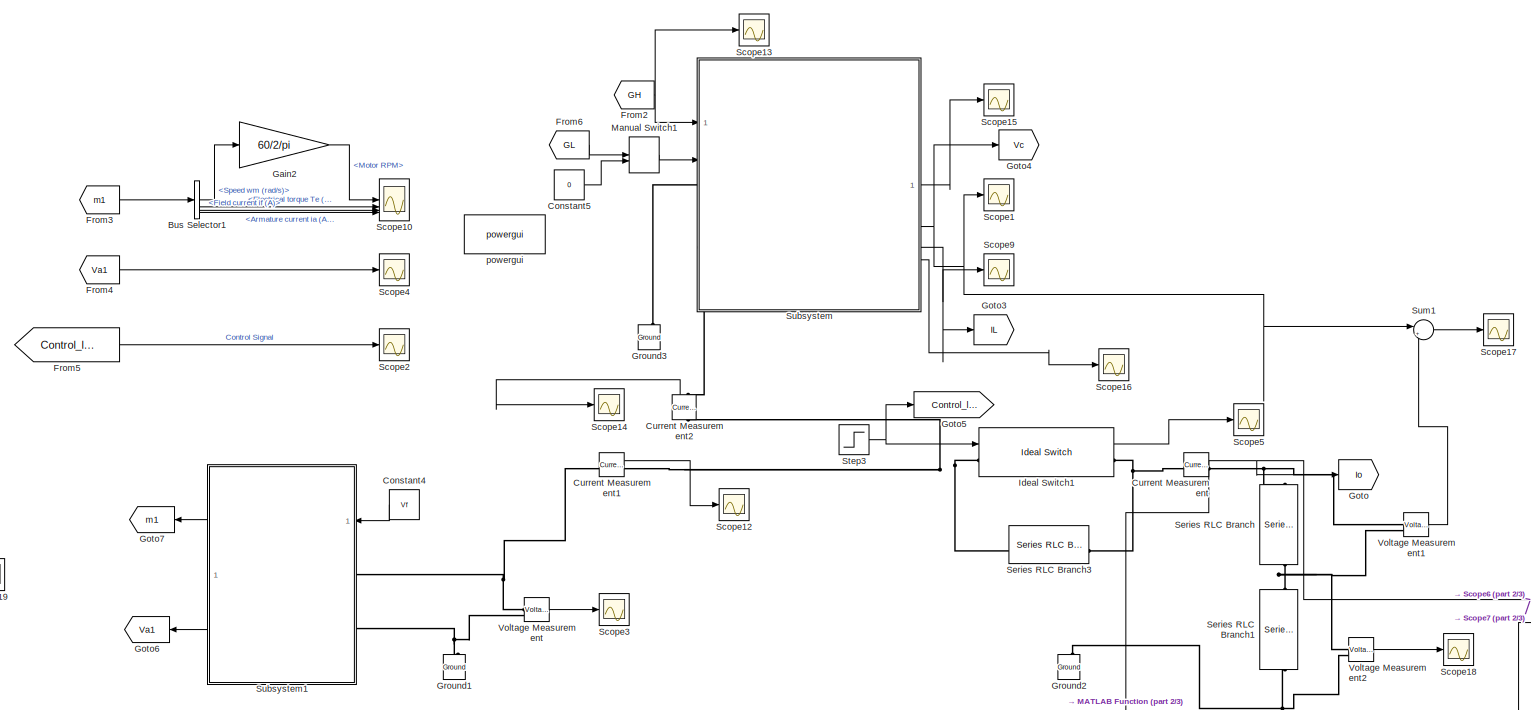
[diagram: root canvas - part 1/3, full width, top band]
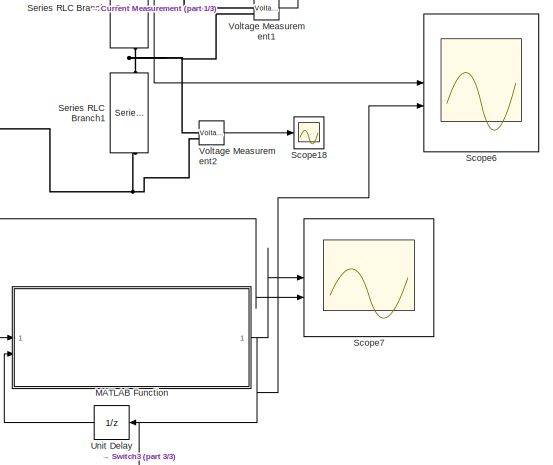
[diagram: root canvas - part 2/3, middle right region]
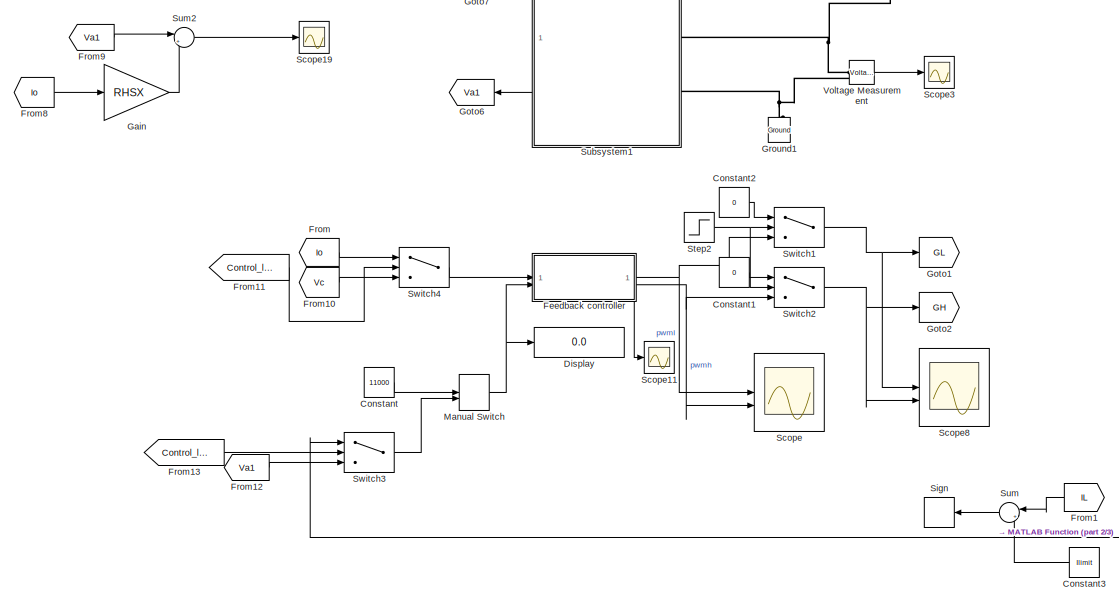
[diagram: root canvas - part 3/3, bottom left region]
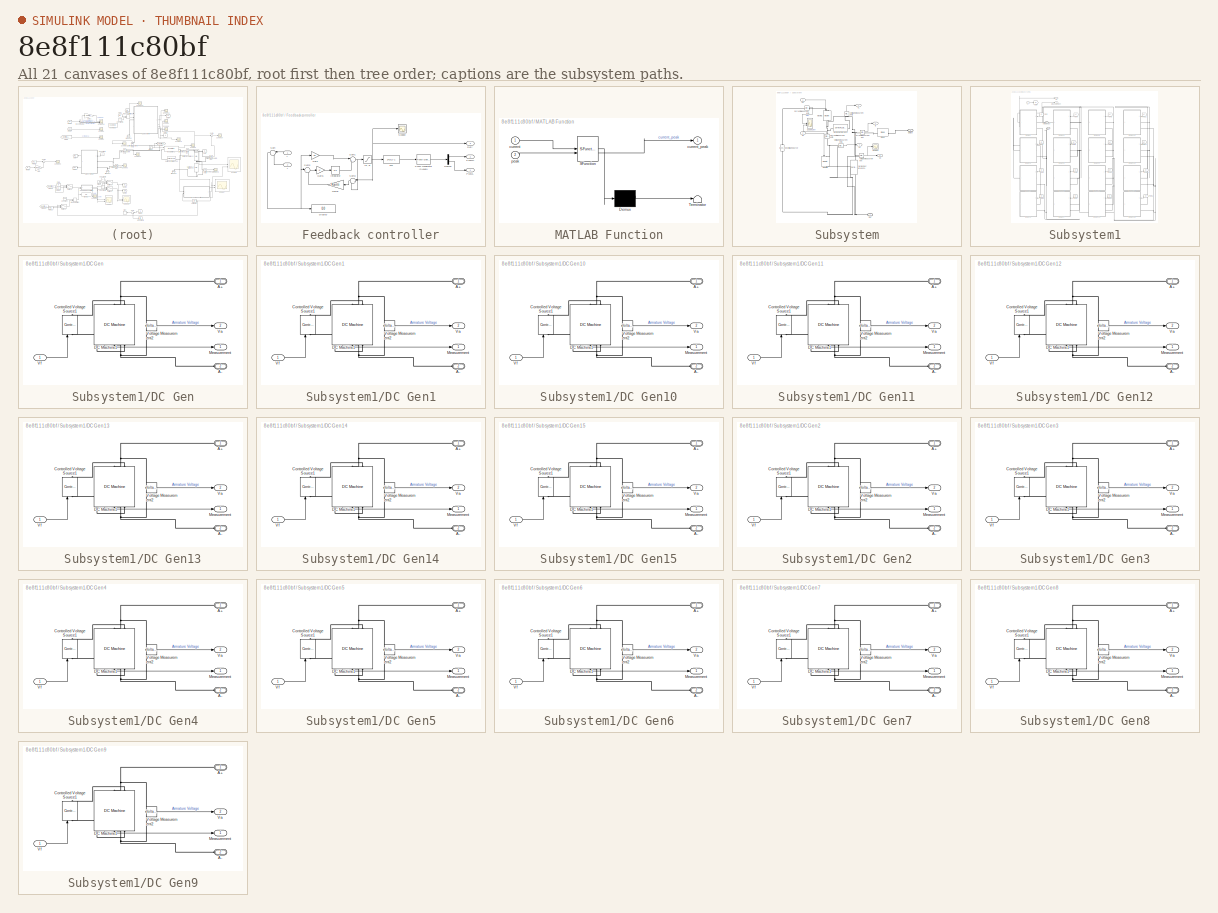
[diagram: thumbnail index - all 21 canvases of the model, root first then tree order]
MODEL slx_8e8f111c80bf
KIND model
CONFIG AbsTol = auto
CONFIG EnableMultiTasking = off
CONFIG FixedStep = auto
CONFIG MaxStep = auto
CONFIG MinStep = auto
CONFIG RelTol = 1e-3
CONFIG SampleTimeConstraint = Unconstrained
CONFIG SolverName = VariableStepAuto
CONFIG StartTime = 0.0
CONFIG StopTime = 10
BLOCK [BusSelector] Bus Selector1
  OutputSignals = Speed wm (rad/s),Electrical torque Te (n m),Field current if (A),Armature current ia (A)
BLOCK [Constant] Constant
  Value = 11000
BLOCK [Constant] Constant1
  Value = 0
BLOCK [Constant] Constant2
  Value = 0
BLOCK [Constant] Constant3
  NameLocation = top
  Value = Ilimit
BLOCK [Constant] Constant4
  NameLocation = top
  Value = Vf
BLOCK [Constant] Constant5
  Value = 0
BLOCK [Reference] Current Measurement  REF=spsCurrentMeasurementLib/Current Measurement
  LibrarySourceBlock = sps_lib/Sensors and Measurements/Current Measurement
  SourceBlock = spsCurrentMeasurementLib/Current Measurement
  SourceType = Current Measurement
  UserDataPersistent = on
BLOCK [Reference] Current Measurement1  REF=spsCurrentMeasurementLib/Current Measurement
  LibrarySourceBlock = sps_lib/Sensors and Measurements/Current Measurement
  SourceBlock = spsCurrentMeasurementLib/Current Measurement
  SourceType = Current Measurement
  UserDataPersistent = on
BLOCK [Reference] Current Measurement2  REF=spsCurrentMeasurementLib/Current Measurement
  LibrarySourceBlock = sps_lib/Sensors and Measurements/Current Measurement
  NameLocation = right
  SourceBlock = spsCurrentMeasurementLib/Current Measurement
  SourceType = Current Measurement
  UserDataPersistent = on
BLOCK [Display] Display
  Decimation = 1
BLOCK [SubSystem] Feedback controller
  NameLocation = top
BLOCK [Demux] Feedback controller/Demux
  Outputs = 2
BLOCK [Display] Feedback controller/Display
  Decimation = 1
BLOCK [Outport] Feedback controller/Duty
  Port = 3
  VectorParamsAs1DForOutWhenUnconnected = off
BLOCK [Fcn] Feedback controller/Fcn
  Expr = 2*u(1)-1
BLOCK [Gain] Feedback controller/Gain
  Gain = Kp
BLOCK [Gain] Feedback controller/Gain1
  Gain = Ki
BLOCK [Gain] Feedback controller/Gain2
  Gain = Kanti
  NameLocation = top
BLOCK [Integrator] Feedback controller/Integrator
BLOCK [Reference] Feedback controller/PWM Generator (2-Level)  REF=spsPWMGenerator2LevelLib/PWM Generator
(2-Level)
  SourceBlock = spsPWMGenerator2LevelLib/PWM Generator\n(2-Level)
  SourceType = PWM Generator (2-Level)
BLOCK [Outport] Feedback controller/PWMH
  Port = 2
  VectorParamsAs1DForOutWhenUnconnected = off
BLOCK [Outport] Feedback controller/PWML
  VectorParamsAs1DForOutWhenUnconnected = off
BLOCK [Scope] Feedback controller/Scope2
  Floating = off
  NumInputPorts = 1
  ScopeSpecificationString = Simulink.scopes.TimeScopeBlockCfg('CurrentConfiguration', extmgr.ConfigurationSet(extmgr.Configuration('Core','General UI',true),extmgr.Configuration('Core','Source UI',true),extmgr.Configuration('Sources','WiredSimulink',true,'DataLoggingVariableName','ScopeData10'),extmgr.Configuration('Visuals','Time Domain',true,'SerializedDisplays',{struct('MinYLimReal','-0.02578','MaxYLimReal','0.23204','YLa...<+1413ch>
BLOCK [Sum] Feedback controller/Sum
  InputSameDT = on
  Inputs = |-+
  OutDataTypeStr = Inherit: Same as first input
  SaturateOnIntegerOverflow = on
BLOCK [Sum] Feedback controller/Sum1
  Inputs = |++
BLOCK [Sum] Feedback controller/Sum2
  Inputs = |+-
BLOCK [Sum] Feedback controller/Sum3
  Inputs = |+-
  NameLocation = top
BLOCK [Saturate] Feedback controller/[0 ,1]
  LowerLimit = 0
  UpperLimit = 1
BLOCK [Inport] Feedback controller/r
  Port = 2
BLOCK [Inport] Feedback controller/y
BLOCK [From] From
  GotoTag = Io
BLOCK [From] From1
  GotoTag = IL
  NameLocation = top
BLOCK [From] From10
  GotoTag = Vc
BLOCK [From] From11
  GotoTag = Control_load
BLOCK [From] From12
  GotoTag = Va1
  NameLocation = top
BLOCK [From] From13
  GotoTag = Control_load
BLOCK [From] From2
  GotoTag = GH
BLOCK [From] From3
  GotoTag = m1
BLOCK [From] From4
  GotoTag = Va1
BLOCK [From] From5
  GotoTag = Control_load
BLOCK [From] From6
  GotoTag = GL
BLOCK [From] From8
  GotoTag = Io
BLOCK [From] From9
  GotoTag = Va1
  NameLocation = top
BLOCK [Gain] Gain
  Gain = RHSX
BLOCK [Gain] Gain2
  Gain = 60/2/pi
BLOCK [Goto] Goto
  GotoTag = Io
BLOCK [Goto] Goto1
  GotoTag = GL
BLOCK [Goto] Goto2
  GotoTag = GH
BLOCK [Goto] Goto3
  GotoTag = IL
BLOCK [Goto] Goto4
  GotoTag = Vc
BLOCK [Goto] Goto5
  GotoTag = Control_load
BLOCK [Goto] Goto6
  GotoTag = Va1
  NameLocation = top
BLOCK [Goto] Goto7
  GotoTag = m1
  NameLocation = top
BLOCK [Reference] Ground1  REF=spsGroundLib/Ground
  LibrarySourceBlock = sps_lib/Utilities/Ground
  NameLocation = right
  SourceBlock = spsGroundLib/Ground
  SourceType = Ground
BLOCK [Reference] Ground2  REF=spsGroundLib/Ground
  LibrarySourceBlock = sps_lib/Utilities/Ground
  NameLocation = right
  SourceBlock = spsGroundLib/Ground
  SourceType = Ground
BLOCK [Reference] Ground3  REF=spsGroundLib/Ground
  LibrarySourceBlock = sps_lib/Utilities/Ground
  NameLocation = right
  SourceBlock = spsGroundLib/Ground
  SourceType = Ground
BLOCK [Reference] Ideal Switch1  REF=spsIdealSwitchLib/Ideal Switch
  LibrarySourceBlock = sps_lib/Power Electronics/Ideal Switch
  SourceBlock = spsIdealSwitchLib/Ideal Switch
  SourceType = Ideal Switch
BLOCK [SubSystem] MATLAB Function
  ErrorFcn = Stateflow.Translate.translate
  PermitHierarchicalResolution = ExplicitOnly
  SFBlockType = MATLAB Function
  TreatAsAtomicUnit = on
BLOCK [Demux] MATLAB Function/ Demux 
  Outputs = 1
BLOCK [S-Function] MATLAB Function/ SFunction 
  EnableBusSupport = on
  FunctionName = sf_sfun
  PortCounts = [2 2]
  SFcnIsStateOwnerBlock = off
  SFunctionDeploymentMode = off
  Tag = Stateflow S-Function 2
BLOCK [Terminator] MATLAB Function/ Terminator 
BLOCK [Inport] MATLAB Function/current
BLOCK [Outport] MATLAB Function/current_peak
BLOCK [Inport] MATLAB Function/peak
  Port = 2
BLOCK [ManualSwitch] Manual Switch
  CurrentSetting = 0
BLOCK [ManualSwitch] Manual Switch1
BLOCK [Scope] Scope
  Floating = off
  NumInputPorts = 2
  ScopeSpecificationString = Simulink.scopes.TimeScopeBlockCfg('CurrentConfiguration', extmgr.ConfigurationSet(extmgr.Configuration('Core','General UI',true),extmgr.Configuration('Core','Source UI',true),extmgr.Configuration('Sources','WiredSimulink',true,'DataLoggingVariableName','ScopeData1'),extmgr.Configuration('Visuals','Time Domain',true,'SerializedDisplays',{struct('MinYLimReal','-0.125','MaxYLimReal','1.125','YLabelRe...<+1430ch>
BLOCK [Scope] Scope1
  Floating = off
  NumInputPorts = 1
  ScopeSpecificationString = Simulink.scopes.TimeScopeBlockCfg('CurrentConfiguration', extmgr.ConfigurationSet(extmgr.Configuration('Core','General UI',true),extmgr.Configuration('Core','Source UI',true),extmgr.Configuration('Sources','WiredSimulink',true,'DataLoggingVariableName','ScopeData5'),extmgr.Configuration('Visuals','Time Domain',true,'SerializedDisplays',{struct('MinYLimReal','-553.98472','MaxYLimReal','2699.8882','...<+1482ch>
BLOCK [Scope] Scope10
  Floating = off
  NumInputPorts = 4
  ScopeSpecificationString = Simulink.scopes.TimeScopeBlockCfg('CurrentConfiguration', extmgr.ConfigurationSet(extmgr.Configuration('Core','General UI',true,'FigureColor',[0 0 0]),extmgr.Configuration('Core','Source UI',true),extmgr.Configuration('Sources','WiredSimulink',true,'DataLoggingVariableName','ScopeData9'),extmgr.Configuration('Visuals','Time Domain',true,'SerializedDisplays',{struct('MinYLimReal','-3276.76898','Max...<+3531ch>
BLOCK [Scope] Scope11
  Floating = off
  NumInputPorts = 1
  ScopeSpecificationString = Simulink.scopes.TimeScopeBlockCfg('CurrentConfiguration', extmgr.ConfigurationSet(extmgr.Configuration('Core','General UI',true),extmgr.Configuration('Core','Source UI',true),extmgr.Configuration('Sources','WiredSimulink',true,'DataLoggingVariableName','ScopeData9'),extmgr.Configuration('Visuals','Time Domain',true,'SerializedDisplays',{struct('MinYLimReal','-0.125','MaxYLimReal','1.125','YLabelRe...<+1464ch>
BLOCK [Scope] Scope12
  Floating = off
  NumInputPorts = 1
  ScopeSpecificationString = Simulink.scopes.TimeScopeBlockCfg('CurrentConfiguration', extmgr.ConfigurationSet(extmgr.Configuration('Core','General UI',true),extmgr.Configuration('Core','Source UI',true),extmgr.Configuration('Sources','WiredSimulink',true,'DataLoggingVariableName','ScopeData10'),extmgr.Configuration('Visuals','Time Domain',true,'SerializedDisplays',{struct('MinYLimReal','-3174.37255','MaxYLimReal','12804.9281...<+1502ch>
BLOCK [Scope] Scope13
  Floating = off
  NumInputPorts = 1
  ScopeSpecificationString = Simulink.scopes.TimeScopeBlockCfg('CurrentConfiguration', extmgr.ConfigurationSet(extmgr.Configuration('Core','General UI',true),extmgr.Configuration('Core','Source UI',true),extmgr.Configuration('Sources','WiredSimulink',true,'DataLoggingVariableName','ScopeData11'),extmgr.Configuration('Visuals','Time Domain',true,'SerializedDisplays',{struct('MinYLimReal','-0.50777','MaxYLimReal','1.36723','YLa...<+2137ch>
BLOCK [Scope] Scope14
  Floating = off
  NumInputPorts = 1
  ScopeSpecificationString = Simulink.scopes.TimeScopeBlockCfg('CurrentConfiguration', extmgr.ConfigurationSet(extmgr.Configuration('Core','General UI',true),extmgr.Configuration('Core','Source UI',true),extmgr.Configuration('Sources','WiredSimulink',true,'DataLoggingVariableName','ScopeData1'),extmgr.Configuration('Visuals','Time Domain',true,'SerializedDisplays',{struct('MinYLimReal','-2112.63781','MaxYLimReal','19013.74041...<+1501ch>
BLOCK [Scope] Scope15
  Floating = off
  NumInputPorts = 1
  ScopeSpecificationString = Simulink.scopes.TimeScopeBlockCfg('CurrentConfiguration', extmgr.ConfigurationSet(extmgr.Configuration('Core','General UI',true),extmgr.Configuration('Core','Source UI',true),extmgr.Configuration('Sources','WiredSimulink',true,'DataLoggingVariableName','ScopeData3'),extmgr.Configuration('Visuals','Time Domain',true,'SerializedDisplays',{struct('MinYLimReal','-149.92234','MaxYLimReal','1349.32504',...<+1484ch>
BLOCK [Scope] Scope16
  Floating = off
  NumInputPorts = 1
  ScopeSpecificationString = Simulink.scopes.TimeScopeBlockCfg('CurrentConfiguration', extmgr.ConfigurationSet(extmgr.Configuration('Core','General UI',true),extmgr.Configuration('Core','Source UI',true),extmgr.Configuration('Sources','WiredSimulink',true,'DataLoggingVariableName','ScopeData1'),extmgr.Configuration('Visuals','Time Domain',true,'SerializedDisplays',{struct('MinYLimReal','-348.70589','MaxYLimReal','654.28354','...<+1482ch>
BLOCK [Scope] Scope17
  Floating = off
  NumInputPorts = 1
  ScopeSpecificationString = Simulink.scopes.TimeScopeBlockCfg('CurrentConfiguration', extmgr.ConfigurationSet(extmgr.Configuration('Core','General UI',true),extmgr.Configuration('Core','Source UI',true),extmgr.Configuration('Sources','WiredSimulink',true,'DataLoggingVariableName','ScopeData2'),extmgr.Configuration('Visuals','Time Domain',true,'SerializedDisplays',{struct('MinYLimReal','-63.1056','MaxYLimReal','562.01299','YL...<+1469ch>
BLOCK [Scope] Scope18
  Floating = off
  NumInputPorts = 1
  ScopeSpecificationString = Simulink.scopes.TimeScopeBlockCfg('CurrentConfiguration', extmgr.ConfigurationSet(extmgr.Configuration('Core','General UI',true),extmgr.Configuration('Core','Source UI',true),extmgr.Configuration('Sources','WiredSimulink',true,'DataLoggingVariableName','ScopeData3'),extmgr.Configuration('Visuals','Time Domain',true,'SerializedDisplays',{struct('MinYLimReal','-1.00000','MaxYLimReal','1.00000','YLab...<+1477ch>
BLOCK [Scope] Scope19
  Floating = off
  NumInputPorts = 1
  ScopeSpecificationString = Simulink.scopes.TimeScopeBlockCfg('CurrentConfiguration', extmgr.ConfigurationSet(extmgr.Configuration('Core','General UI',true),extmgr.Configuration('Core','Source UI',true),extmgr.Configuration('Sources','WiredSimulink',true,'DataLoggingVariableName','ScopeData4'),extmgr.Configuration('Visuals','Time Domain',true,'SerializedDisplays',{struct('MinYLimReal','-345.27929','MaxYLimReal','1273.51438',...<+1432ch>
BLOCK [Scope] Scope2
  Floating = off
  NumInputPorts = 1
  ScopeSpecificationString = Simulink.scopes.TimeScopeBlockCfg('CurrentConfiguration', extmgr.ConfigurationSet(extmgr.Configuration('Core','General UI',true),extmgr.Configuration('Core','Source UI',true),extmgr.Configuration('Sources','WiredSimulink',true,'DataLoggingVariableName','ScopeData4'),extmgr.Configuration('Visuals','Time Domain',true,'SerializedDisplays',{struct('MinYLimReal','-0.125','MaxYLimReal','1.125','YLabelRe...<+1388ch>
BLOCK [Scope] Scope3
  Floating = off
  NumInputPorts = 1
  ScopeSpecificationString = Simulink.scopes.TimeScopeBlockCfg('CurrentConfiguration', extmgr.ConfigurationSet(extmgr.Configuration('Core','General UI',true),extmgr.Configuration('Core','Source UI',true),extmgr.Configuration('Sources','WiredSimulink',true,'DataLoggingVariableName','ScopeData6'),extmgr.Configuration('Visuals','Time Domain',true,'SerializedDisplays',{struct('MinYLimReal','-1230.8153','MaxYLimReal','1532.67671',...<+2122ch>
BLOCK [Scope] Scope4
  Floating = off
  NumInputPorts = 1
  ScopeSpecificationString = Simulink.scopes.TimeScopeBlockCfg('CurrentConfiguration', extmgr.ConfigurationSet(extmgr.Configuration('Core','General UI',true),extmgr.Configuration('Core','Source UI',true),extmgr.Configuration('Sources','WiredSimulink',true,'DataLoggingVariableName','ScopeData5'),extmgr.Configuration('Visuals','Time Domain',true,'SerializedDisplays',{struct('MinYLimReal','-2309.48322','MaxYLimReal','1652.52871'...<+1471ch>
BLOCK [Scope] Scope5
  Floating = off
  NumInputPorts = 1
  ScopeSpecificationString = Simulink.scopes.TimeScopeBlockCfg('CurrentConfiguration', extmgr.ConfigurationSet(extmgr.Configuration('Core','General UI',true),extmgr.Configuration('Core','Source UI',true),extmgr.Configuration('Sources','WiredSimulink',true,'DataLoggingVariableName','ScopeData1'),extmgr.Configuration('Visuals','Time Domain',true,'SerializedDisplays',{struct('MinYLimReal','-204.99354','MaxYLimReal','1844.94183',...<+2136ch>
BLOCK [Scope] Scope6
  Floating = off
  NumInputPorts = 2
  ScopeSpecificationString = Simulink.scopes.TimeScopeBlockCfg('CurrentConfiguration', extmgr.ConfigurationSet(extmgr.Configuration('Core','General UI',true),extmgr.Configuration('Core','Source UI',true),extmgr.Configuration('Sources','WiredSimulink',true,'DataLoggingVariableName','ScopeData2'),extmgr.Configuration('Visuals','Time Domain',true,'SerializedDisplays',{struct('MinYLimReal','-1235.49851','MaxYLimReal','11119.48658...<+1520ch>
BLOCK [Scope] Scope7
  Floating = off
  NumInputPorts = 2
  ScopeSpecificationString = Simulink.scopes.TimeScopeBlockCfg('CurrentConfiguration', extmgr.ConfigurationSet(extmgr.Configuration('Core','General UI',true),extmgr.Configuration('Core','Source UI',true),extmgr.Configuration('Sources','WiredSimulink',true,'DataLoggingVariableName','ScopeData3'),extmgr.Configuration('Visuals','Time Domain',true,'SerializedDisplays',{struct('MinYLimReal','-2068.07383','MaxYLimReal','18612.66457...<+2121ch>
BLOCK [Scope] Scope8
  Floating = off
  NumInputPorts = 2
  ScopeSpecificationString = Simulink.scopes.TimeScopeBlockCfg('CurrentConfiguration', extmgr.ConfigurationSet(extmgr.Configuration('Core','General UI',true),extmgr.Configuration('Core','Source UI',true),extmgr.Configuration('Sources','WiredSimulink',true,'DataLoggingVariableName','ScopeData7'),extmgr.Configuration('Visuals','Time Domain',true,'SerializedDisplays',{struct('MinYLimReal','-0.125','MaxYLimReal','1.125','YLabelRe...<+1436ch>
BLOCK [Scope] Scope9
  Floating = off
  NumInputPorts = 1
  ScopeSpecificationString = Simulink.scopes.TimeScopeBlockCfg('CurrentConfiguration', extmgr.ConfigurationSet(extmgr.Configuration('Core','General UI',true),extmgr.Configuration('Core','Source UI',true),extmgr.Configuration('Sources','WiredSimulink',true,'DataLoggingVariableName','ScopeData8'),extmgr.Configuration('Visuals','Time Domain',true,'SerializedDisplays',{struct('MinYLimReal','-98.8413','MaxYLimReal','885.1117','YLa...<+1498ch>
BLOCK [Reference] Series RLC Branch  REF=spsSeriesRLCBranchLib/Series RLC Branch
  LibrarySourceBlock = sps_lib/Passives/Series RLC Branch
  NameLocation = left
  SourceBlock = spsSeriesRLCBranchLib/Series RLC Branch
  SourceType = Series RLC Branch
BLOCK [Reference] Series RLC Branch1  REF=spsSeriesRLCBranchLib/Series RLC Branch
  LibrarySourceBlock = sps_lib/Passives/Series RLC Branch
  NameLocation = left
  SourceBlock = spsSeriesRLCBranchLib/Series RLC Branch
  SourceType = Series RLC Branch
BLOCK [Reference] Series RLC Branch3  REF=spsSeriesRLCBranchLib/Series RLC Branch
  LibrarySourceBlock = sps_lib/Passives/Series RLC Branch
  NameLocation = top
  SourceBlock = spsSeriesRLCBranchLib/Series RLC Branch
  SourceType = Series RLC Branch
BLOCK [Signum] Sign
  NameLocation = top
BLOCK [Step] Step2
  After = 0
  Before = 1
  SampleTime = 0
  Time = 5
  VectorParams1D = off
  ZeroCross = off
BLOCK [Step] Step3
  SampleTime = 0
  Time = 5
  VectorParams1D = off
  ZeroCross = off
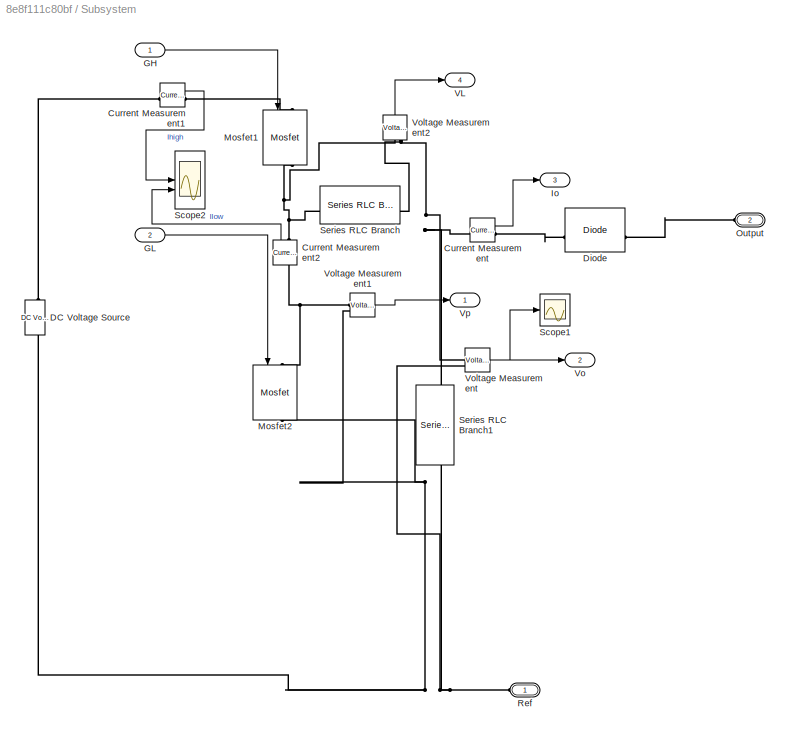
BLOCK [SubSystem] Subsystem
BLOCK [Reference] Subsystem/Current Measurement  REF=spsCurrentMeasurementLib/Current Measurement
  LibrarySourceBlock = sps_lib/Sensors and Measurements/Current Measurement
  SourceBlock = spsCurrentMeasurementLib/Current Measurement
  SourceType = Current Measurement
  UserDataPersistent = on
BLOCK [Reference] Subsystem/Current Measurement1  REF=spsCurrentMeasurementLib/Current Measurement
  LibrarySourceBlock = sps_lib/Sensors and Measurements/Current Measurement
  SourceBlock = spsCurrentMeasurementLib/Current Measurement
  SourceType = Current Measurement
  UserDataPersistent = on
BLOCK [Reference] Subsystem/Current Measurement2  REF=spsCurrentMeasurementLib/Current Measurement
  LibrarySourceBlock = sps_lib/Sensors and Measurements/Current Measurement
  NameLocation = right
  SourceBlock = spsCurrentMeasurementLib/Current Measurement
  SourceType = Current Measurement
  UserDataPersistent = on
BLOCK [Reference] Subsystem/DC Voltage Source  REF=spsDCVoltageSourceLib/DC Voltage Source
  LibrarySourceBlock = sps_lib/Sources/DC Voltage Source
  SourceBlock = spsDCVoltageSourceLib/DC Voltage Source
  SourceType = DC Voltage Source
BLOCK [Reference] Subsystem/Diode  REF=spsDiodeLib/Diode
  LibrarySourceBlock = sps_lib/Power Electronics/Diode
  SourceBlock = spsDiodeLib/Diode
  SourceType = Diode
BLOCK [Inport] Subsystem/GH
BLOCK [Inport] Subsystem/GL
  Port = 2
BLOCK [Outport] Subsystem/Io
  Port = 3
BLOCK [Reference] Subsystem/Mosfet1  REF=spsMosfetLib/Mosfet
  NameLocation = left
  SourceBlock = spsMosfetLib/Mosfet
  SourceType = Mosfet
BLOCK [Reference] Subsystem/Mosfet2  REF=spsMosfetLib/Mosfet
  NameLocation = left
  SourceBlock = spsMosfetLib/Mosfet
  SourceType = Mosfet
BLOCK [PMIOPort] Subsystem/Output
  NameLocation = top
  Port = 2
  Side = Left
BLOCK [PMIOPort] Subsystem/Ref
  NameLocation = top
  Side = Left
BLOCK [Scope] Subsystem/Scope1
  Floating = off
  NumInputPorts = 1
  ScopeSpecificationString = Simulink.scopes.TimeScopeBlockCfg('CurrentConfiguration', extmgr.ConfigurationSet(extmgr.Configuration('Core','General UI',true),extmgr.Configuration('Core','Source UI',true),extmgr.Configuration('Sources','WiredSimulink',true,'DataLoggingVariableName','ScopeData4'),extmgr.Configuration('Visuals','Time Domain',true,'SerializedDisplays',{struct('MinYLimReal','-1387.08233','MaxYLimReal','1463.84644'...<+1473ch>
BLOCK [Scope] Subsystem/Scope2
  Floating = off
  NumInputPorts = 2
  ScopeSpecificationString = Simulink.scopes.TimeScopeBlockCfg('CurrentConfiguration', extmgr.ConfigurationSet(extmgr.Configuration('Core','General UI',true),extmgr.Configuration('Core','Source UI',true),extmgr.Configuration('Sources','WiredSimulink',true,'DataLoggingVariableName','ScopeData4'),extmgr.Configuration('Visuals','Time Domain',true,'SerializedDisplays',{struct('MinYLimReal','-101.35629','MaxYLimReal','885.39667','...<+1458ch>
BLOCK [Reference] Subsystem/Series RLC Branch  REF=spsSeriesRLCBranchLib/Series RLC Branch
  LibrarySourceBlock = sps_lib/Passives/Series RLC Branch
  SourceBlock = spsSeriesRLCBranchLib/Series RLC Branch
  SourceType = Series RLC Branch
BLOCK [Reference] Subsystem/Series RLC Branch1  REF=spsSeriesRLCBranchLib/Series RLC Branch
  LibrarySourceBlock = sps_lib/Passives/Series RLC Branch
  NameLocation = left
  SourceBlock = spsSeriesRLCBranchLib/Series RLC Branch
  SourceType = Series RLC Branch
BLOCK [Outport] Subsystem/VL
  Port = 4
BLOCK [Outport] Subsystem/Vo
  Port = 2
BLOCK [Reference] Subsystem/Voltage Measurement  REF=spsVoltageMeasurementLib/Voltage Measurement
  LibrarySourceBlock = sps_lib/Sensors and Measurements/Voltage Measurement
  SourceBlock = spsVoltageMeasurementLib/Voltage Measurement
  SourceType = Voltage Measurement
  UserDataPersistent = on
BLOCK [Reference] Subsystem/Voltage Measurement1  REF=spsVoltageMeasurementLib/Voltage Measurement
  LibrarySourceBlock = sps_lib/Sensors and Measurements/Voltage Measurement
  SourceBlock = spsVoltageMeasurementLib/Voltage Measurement
  SourceType = Voltage Measurement
  UserDataPersistent = on
BLOCK [Reference] Subsystem/Voltage Measurement2  REF=spsVoltageMeasurementLib/Voltage Measurement
  LibrarySourceBlock = sps_lib/Sensors and Measurements/Voltage Measurement
  NameLocation = right
  SourceBlock = spsVoltageMeasurementLib/Voltage Measurement
  SourceType = Voltage Measurement
  UserDataPersistent = on
BLOCK [Outport] Subsystem/Vp
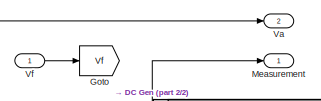
[diagram: Subsystem1 - part 1/2, top left region]
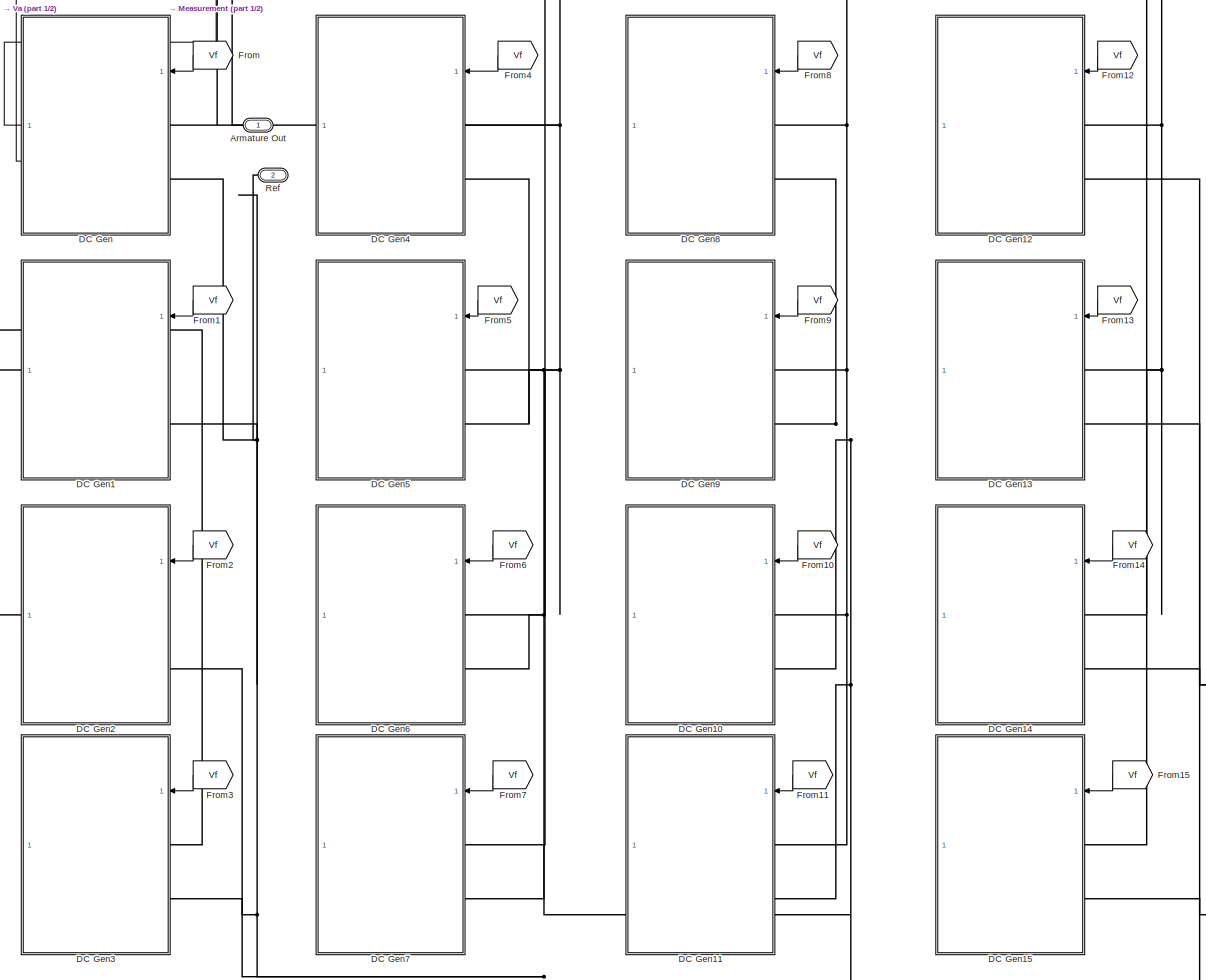
[diagram: Subsystem1 - part 2/2, most of the canvas]
BLOCK [SubSystem] Subsystem1
  NameLocation = top
BLOCK [PMIOPort] Subsystem1/Armature Out
  NameLocation = top
  Side = Left
BLOCK [SubSystem] Subsystem1/DC Gen
  NameLocation = top
BLOCK [PMIOPort] Subsystem1/DC Gen/A+
  NameLocation = top
  Side = Left
BLOCK [PMIOPort] Subsystem1/DC Gen/A-
  NameLocation = top
  Port = 2
  Side = Left
BLOCK [Reference] Subsystem1/DC Gen/Controlled Voltage Source1  REF=spsControlledVoltageSourceLib/Controlled Voltage Source
  LibrarySourceBlock = sps_lib/Sources/Controlled Voltage Source
  NameLocation = right
  SourceBlock = spsControlledVoltageSourceLib/Controlled Voltage Source
  SourceType = Controlled Voltage Source
BLOCK [Reference] Subsystem1/DC Gen/DC Machine1  REF=spsDCMachineLib/DC Machine
  LibrarySourceBlock = sps_lib/Electrical Machines/DC Machine
  NameLocation = left
  SourceBlock = spsDCMachineLib/DC Machine
  SourceType = DC machine
BLOCK [Outport] Subsystem1/DC Gen/Measurement
BLOCK [Outport] Subsystem1/DC Gen/Va
  Port = 2
BLOCK [Inport] Subsystem1/DC Gen/Vf
BLOCK [Reference] Subsystem1/DC Gen/Voltage Measurement2  REF=spsVoltageMeasurementLib/Voltage Measurement
  LibrarySourceBlock = sps_lib/Sensors and Measurements/Voltage Measurement
  SourceBlock = spsVoltageMeasurementLib/Voltage Measurement
  SourceType = Voltage Measurement
  UserDataPersistent = on
BLOCK [SubSystem] Subsystem1/DC Gen1
  NameLocation = top
BLOCK [PMIOPort] Subsystem1/DC Gen1/A+
  NameLocation = top
  Side = Left
BLOCK [PMIOPort] Subsystem1/DC Gen1/A-
  NameLocation = top
  Port = 2
  Side = Left
BLOCK [Reference] Subsystem1/DC Gen1/Controlled Voltage Source1  REF=spsControlledVoltageSourceLib/Controlled Voltage Source
  LibrarySourceBlock = sps_lib/Sources/Controlled Voltage Source
  NameLocation = right
  SourceBlock = spsControlledVoltageSourceLib/Controlled Voltage Source
  SourceType = Controlled Voltage Source
BLOCK [Reference] Subsystem1/DC Gen1/DC Machine1  REF=spsDCMachineLib/DC Machine
  LibrarySourceBlock = sps_lib/Electrical Machines/DC Machine
  NameLocation = left
  SourceBlock = spsDCMachineLib/DC Machine
  SourceType = DC machine
BLOCK [Outport] Subsystem1/DC Gen1/Measurement
BLOCK [Outport] Subsystem1/DC Gen1/Va
  Port = 2
BLOCK [Inport] Subsystem1/DC Gen1/Vf
BLOCK [Reference] Subsystem1/DC Gen1/Voltage Measurement2  REF=spsVoltageMeasurementLib/Voltage Measurement
  LibrarySourceBlock = sps_lib/Sensors and Measurements/Voltage Measurement
  SourceBlock = spsVoltageMeasurementLib/Voltage Measurement
  SourceType = Voltage Measurement
  UserDataPersistent = on
BLOCK [SubSystem] Subsystem1/DC Gen10
  NameLocation = top
BLOCK [PMIOPort] Subsystem1/DC Gen10/A+
  NameLocation = top
  Side = Left
BLOCK [PMIOPort] Subsystem1/DC Gen10/A-
  NameLocation = top
  Port = 2
  Side = Left
BLOCK [Reference] Subsystem1/DC Gen10/Controlled Voltage Source1  REF=spsControlledVoltageSourceLib/Controlled Voltage Source
  LibrarySourceBlock = sps_lib/Sources/Controlled Voltage Source
  NameLocation = right
  SourceBlock = spsControlledVoltageSourceLib/Controlled Voltage Source
  SourceType = Controlled Voltage Source
BLOCK [Reference] Subsystem1/DC Gen10/DC Machine1  REF=spsDCMachineLib/DC Machine
  LibrarySourceBlock = sps_lib/Electrical Machines/DC Machine
  NameLocation = left
  SourceBlock = spsDCMachineLib/DC Machine
  SourceType = DC machine
BLOCK [Outport] Subsystem1/DC Gen10/Measurement
BLOCK [Outport] Subsystem1/DC Gen10/Va
  Port = 2
BLOCK [Inport] Subsystem1/DC Gen10/Vf
BLOCK [Reference] Subsystem1/DC Gen10/Voltage Measurement2  REF=spsVoltageMeasurementLib/Voltage Measurement
  LibrarySourceBlock = sps_lib/Sensors and Measurements/Voltage Measurement
  SourceBlock = spsVoltageMeasurementLib/Voltage Measurement
  SourceType = Voltage Measurement
  UserDataPersistent = on
BLOCK [SubSystem] Subsystem1/DC Gen11
  NameLocation = top
BLOCK [PMIOPort] Subsystem1/DC Gen11/A+
  NameLocation = top
  Side = Left
BLOCK [PMIOPort] Subsystem1/DC Gen11/A-
  NameLocation = top
  Port = 2
  Side = Left
BLOCK [Reference] Subsystem1/DC Gen11/Controlled Voltage Source1  REF=spsControlledVoltageSourceLib/Controlled Voltage Source
  LibrarySourceBlock = sps_lib/Sources/Controlled Voltage Source
  NameLocation = right
  SourceBlock = spsControlledVoltageSourceLib/Controlled Voltage Source
  SourceType = Controlled Voltage Source
BLOCK [Reference] Subsystem1/DC Gen11/DC Machine1  REF=spsDCMachineLib/DC Machine
  LibrarySourceBlock = sps_lib/Electrical Machines/DC Machine
  NameLocation = left
  SourceBlock = spsDCMachineLib/DC Machine
  SourceType = DC machine
BLOCK [Outport] Subsystem1/DC Gen11/Measurement
BLOCK [Outport] Subsystem1/DC Gen11/Va
  Port = 2
BLOCK [Inport] Subsystem1/DC Gen11/Vf
BLOCK [Reference] Subsystem1/DC Gen11/Voltage Measurement2  REF=spsVoltageMeasurementLib/Voltage Measurement
  LibrarySourceBlock = sps_lib/Sensors and Measurements/Voltage Measurement
  SourceBlock = spsVoltageMeasurementLib/Voltage Measurement
  SourceType = Voltage Measurement
  UserDataPersistent = on
BLOCK [SubSystem] Subsystem1/DC Gen12
  NameLocation = top
BLOCK [PMIOPort] Subsystem1/DC Gen12/A+
  NameLocation = top
  Side = Left
BLOCK [PMIOPort] Subsystem1/DC Gen12/A-
  NameLocation = top
  Port = 2
  Side = Left
BLOCK [Reference] Subsystem1/DC Gen12/Controlled Voltage Source1  REF=spsControlledVoltageSourceLib/Controlled Voltage Source
  LibrarySourceBlock = sps_lib/Sources/Controlled Voltage Source
  NameLocation = right
  SourceBlock = spsControlledVoltageSourceLib/Controlled Voltage Source
  SourceType = Controlled Voltage Source
BLOCK [Reference] Subsystem1/DC Gen12/DC Machine1  REF=spsDCMachineLib/DC Machine
  LibrarySourceBlock = sps_lib/Electrical Machines/DC Machine
  NameLocation = left
  SourceBlock = spsDCMachineLib/DC Machine
  SourceType = DC machine
BLOCK [Outport] Subsystem1/DC Gen12/Measurement
BLOCK [Outport] Subsystem1/DC Gen12/Va
  Port = 2
BLOCK [Inport] Subsystem1/DC Gen12/Vf
BLOCK [Reference] Subsystem1/DC Gen12/Voltage Measurement2  REF=spsVoltageMeasurementLib/Voltage Measurement
  LibrarySourceBlock = sps_lib/Sensors and Measurements/Voltage Measurement
  SourceBlock = spsVoltageMeasurementLib/Voltage Measurement
  SourceType = Voltage Measurement
  UserDataPersistent = on
BLOCK [SubSystem] Subsystem1/DC Gen13
  NameLocation = top
BLOCK [PMIOPort] Subsystem1/DC Gen13/A+
  NameLocation = top
  Side = Left
BLOCK [PMIOPort] Subsystem1/DC Gen13/A-
  NameLocation = top
  Port = 2
  Side = Left
BLOCK [Reference] Subsystem1/DC Gen13/Controlled Voltage Source1  REF=spsControlledVoltageSourceLib/Controlled Voltage Source
  LibrarySourceBlock = sps_lib/Sources/Controlled Voltage Source
  NameLocation = right
  SourceBlock = spsControlledVoltageSourceLib/Controlled Voltage Source
  SourceType = Controlled Voltage Source
BLOCK [Reference] Subsystem1/DC Gen13/DC Machine1  REF=spsDCMachineLib/DC Machine
  LibrarySourceBlock = sps_lib/Electrical Machines/DC Machine
  NameLocation = left
  SourceBlock = spsDCMachineLib/DC Machine
  SourceType = DC machine
BLOCK [Outport] Subsystem1/DC Gen13/Measurement
BLOCK [Outport] Subsystem1/DC Gen13/Va
  Port = 2
BLOCK [Inport] Subsystem1/DC Gen13/Vf
BLOCK [Reference] Subsystem1/DC Gen13/Voltage Measurement2  REF=spsVoltageMeasurementLib/Voltage Measurement
  LibrarySourceBlock = sps_lib/Sensors and Measurements/Voltage Measurement
  SourceBlock = spsVoltageMeasurementLib/Voltage Measurement
  SourceType = Voltage Measurement
  UserDataPersistent = on
BLOCK [SubSystem] Subsystem1/DC Gen14
  NameLocation = top
BLOCK [PMIOPort] Subsystem1/DC Gen14/A+
  NameLocation = top
  Side = Left
BLOCK [PMIOPort] Subsystem1/DC Gen14/A-
  NameLocation = top
  Port = 2
  Side = Left
BLOCK [Reference] Subsystem1/DC Gen14/Controlled Voltage Source1  REF=spsControlledVoltageSourceLib/Controlled Voltage Source
  LibrarySourceBlock = sps_lib/Sources/Controlled Voltage Source
  NameLocation = right
  SourceBlock = spsControlledVoltageSourceLib/Controlled Voltage Source
  SourceType = Controlled Voltage Source
BLOCK [Reference] Subsystem1/DC Gen14/DC Machine1  REF=spsDCMachineLib/DC Machine
  LibrarySourceBlock = sps_lib/Electrical Machines/DC Machine
  NameLocation = left
  SourceBlock = spsDCMachineLib/DC Machine
  SourceType = DC machine
BLOCK [Outport] Subsystem1/DC Gen14/Measurement
BLOCK [Outport] Subsystem1/DC Gen14/Va
  Port = 2
BLOCK [Inport] Subsystem1/DC Gen14/Vf
BLOCK [Reference] Subsystem1/DC Gen14/Voltage Measurement2  REF=spsVoltageMeasurementLib/Voltage Measurement
  LibrarySourceBlock = sps_lib/Sensors and Measurements/Voltage Measurement
  SourceBlock = spsVoltageMeasurementLib/Voltage Measurement
  SourceType = Voltage Measurement
  UserDataPersistent = on
BLOCK [SubSystem] Subsystem1/DC Gen15
  NameLocation = top
BLOCK [PMIOPort] Subsystem1/DC Gen15/A+
  NameLocation = top
  Side = Left
BLOCK [PMIOPort] Subsystem1/DC Gen15/A-
  NameLocation = top
  Port = 2
  Side = Left
BLOCK [Reference] Subsystem1/DC Gen15/Controlled Voltage Source1  REF=spsControlledVoltageSourceLib/Controlled Voltage Source
  LibrarySourceBlock = sps_lib/Sources/Controlled Voltage Source
  NameLocation = right
  SourceBlock = spsControlledVoltageSourceLib/Controlled Voltage Source
  SourceType = Controlled Voltage Source
BLOCK [Reference] Subsystem1/DC Gen15/DC Machine1  REF=spsDCMachineLib/DC Machine
  LibrarySourceBlock = sps_lib/Electrical Machines/DC Machine
  NameLocation = left
  SourceBlock = spsDCMachineLib/DC Machine
  SourceType = DC machine
BLOCK [Outport] Subsystem1/DC Gen15/Measurement
BLOCK [Outport] Subsystem1/DC Gen15/Va
  Port = 2
BLOCK [Inport] Subsystem1/DC Gen15/Vf
BLOCK [Reference] Subsystem1/DC Gen15/Voltage Measurement2  REF=spsVoltageMeasurementLib/Voltage Measurement
  LibrarySourceBlock = sps_lib/Sensors and Measurements/Voltage Measurement
  SourceBlock = spsVoltageMeasurementLib/Voltage Measurement
  SourceType = Voltage Measurement
  UserDataPersistent = on
BLOCK [SubSystem] Subsystem1/DC Gen2
  NameLocation = top
BLOCK [PMIOPort] Subsystem1/DC Gen2/A+
  NameLocation = top
  Side = Left
BLOCK [PMIOPort] Subsystem1/DC Gen2/A-
  NameLocation = top
  Port = 2
  Side = Left
BLOCK [Reference] Subsystem1/DC Gen2/Controlled Voltage Source1  REF=spsControlledVoltageSourceLib/Controlled Voltage Source
  LibrarySourceBlock = sps_lib/Sources/Controlled Voltage Source
  NameLocation = right
  SourceBlock = spsControlledVoltageSourceLib/Controlled Voltage Source
  SourceType = Controlled Voltage Source
BLOCK [Reference] Subsystem1/DC Gen2/DC Machine1  REF=spsDCMachineLib/DC Machine
  LibrarySourceBlock = sps_lib/Electrical Machines/DC Machine
  NameLocation = left
  SourceBlock = spsDCMachineLib/DC Machine
  SourceType = DC machine
BLOCK [Outport] Subsystem1/DC Gen2/Measurement
BLOCK [Outport] Subsystem1/DC Gen2/Va
  Port = 2
BLOCK [Inport] Subsystem1/DC Gen2/Vf
BLOCK [Reference] Subsystem1/DC Gen2/Voltage Measurement2  REF=spsVoltageMeasurementLib/Voltage Measurement
  LibrarySourceBlock = sps_lib/Sensors and Measurements/Voltage Measurement
  SourceBlock = spsVoltageMeasurementLib/Voltage Measurement
  SourceType = Voltage Measurement
  UserDataPersistent = on
BLOCK [SubSystem] Subsystem1/DC Gen3
  NameLocation = top
BLOCK [PMIOPort] Subsystem1/DC Gen3/A+
  NameLocation = top
  Side = Left
BLOCK [PMIOPort] Subsystem1/DC Gen3/A-
  NameLocation = top
  Port = 2
  Side = Left
BLOCK [Reference] Subsystem1/DC Gen3/Controlled Voltage Source1  REF=spsControlledVoltageSourceLib/Controlled Voltage Source
  LibrarySourceBlock = sps_lib/Sources/Controlled Voltage Source
  NameLocation = right
  SourceBlock = spsControlledVoltageSourceLib/Controlled Voltage Source
  SourceType = Controlled Voltage Source
BLOCK [Reference] Subsystem1/DC Gen3/DC Machine1  REF=spsDCMachineLib/DC Machine
  LibrarySourceBlock = sps_lib/Electrical Machines/DC Machine
  NameLocation = left
  SourceBlock = spsDCMachineLib/DC Machine
  SourceType = DC machine
BLOCK [Outport] Subsystem1/DC Gen3/Measurement
BLOCK [Outport] Subsystem1/DC Gen3/Va
  Port = 2
BLOCK [Inport] Subsystem1/DC Gen3/Vf
BLOCK [Reference] Subsystem1/DC Gen3/Voltage Measurement2  REF=spsVoltageMeasurementLib/Voltage Measurement
  LibrarySourceBlock = sps_lib/Sensors and Measurements/Voltage Measurement
  SourceBlock = spsVoltageMeasurementLib/Voltage Measurement
  SourceType = Voltage Measurement
  UserDataPersistent = on
BLOCK [SubSystem] Subsystem1/DC Gen4
  NameLocation = top
BLOCK [PMIOPort] Subsystem1/DC Gen4/A+
  NameLocation = top
  Side = Left
BLOCK [PMIOPort] Subsystem1/DC Gen4/A-
  NameLocation = top
  Port = 2
  Side = Left
BLOCK [Reference] Subsystem1/DC Gen4/Controlled Voltage Source1  REF=spsControlledVoltageSourceLib/Controlled Voltage Source
  LibrarySourceBlock = sps_lib/Sources/Controlled Voltage Source
  NameLocation = right
  SourceBlock = spsControlledVoltageSourceLib/Controlled Voltage Source
  SourceType = Controlled Voltage Source
BLOCK [Reference] Subsystem1/DC Gen4/DC Machine1  REF=spsDCMachineLib/DC Machine
  LibrarySourceBlock = sps_lib/Electrical Machines/DC Machine
  NameLocation = left
  SourceBlock = spsDCMachineLib/DC Machine
  SourceType = DC machine
BLOCK [Outport] Subsystem1/DC Gen4/Measurement
BLOCK [Outport] Subsystem1/DC Gen4/Va
  Port = 2
BLOCK [Inport] Subsystem1/DC Gen4/Vf
BLOCK [Reference] Subsystem1/DC Gen4/Voltage Measurement2  REF=spsVoltageMeasurementLib/Voltage Measurement
  LibrarySourceBlock = sps_lib/Sensors and Measurements/Voltage Measurement
  SourceBlock = spsVoltageMeasurementLib/Voltage Measurement
  SourceType = Voltage Measurement
  UserDataPersistent = on
BLOCK [SubSystem] Subsystem1/DC Gen5
  NameLocation = top
BLOCK [PMIOPort] Subsystem1/DC Gen5/A+
  NameLocation = top
  Side = Left
BLOCK [PMIOPort] Subsystem1/DC Gen5/A-
  NameLocation = top
  Port = 2
  Side = Left
BLOCK [Reference] Subsystem1/DC Gen5/Controlled Voltage Source1  REF=spsControlledVoltageSourceLib/Controlled Voltage Source
  LibrarySourceBlock = sps_lib/Sources/Controlled Voltage Source
  NameLocation = right
  SourceBlock = spsControlledVoltageSourceLib/Controlled Voltage Source
  SourceType = Controlled Voltage Source
BLOCK [Reference] Subsystem1/DC Gen5/DC Machine1  REF=spsDCMachineLib/DC Machine
  LibrarySourceBlock = sps_lib/Electrical Machines/DC Machine
  NameLocation = left
  SourceBlock = spsDCMachineLib/DC Machine
  SourceType = DC machine
BLOCK [Outport] Subsystem1/DC Gen5/Measurement
BLOCK [Outport] Subsystem1/DC Gen5/Va
  Port = 2
BLOCK [Inport] Subsystem1/DC Gen5/Vf
BLOCK [Reference] Subsystem1/DC Gen5/Voltage Measurement2  REF=spsVoltageMeasurementLib/Voltage Measurement
  LibrarySourceBlock = sps_lib/Sensors and Measurements/Voltage Measurement
  SourceBlock = spsVoltageMeasurementLib/Voltage Measurement
  SourceType = Voltage Measurement
  UserDataPersistent = on
BLOCK [SubSystem] Subsystem1/DC Gen6
  NameLocation = top
BLOCK [PMIOPort] Subsystem1/DC Gen6/A+
  NameLocation = top
  Side = Left
BLOCK [PMIOPort] Subsystem1/DC Gen6/A-
  NameLocation = top
  Port = 2
  Side = Left
BLOCK [Reference] Subsystem1/DC Gen6/Controlled Voltage Source1  REF=spsControlledVoltageSourceLib/Controlled Voltage Source
  LibrarySourceBlock = sps_lib/Sources/Controlled Voltage Source
  NameLocation = right
  SourceBlock = spsControlledVoltageSourceLib/Controlled Voltage Source
  SourceType = Controlled Voltage Source
BLOCK [Reference] Subsystem1/DC Gen6/DC Machine1  REF=spsDCMachineLib/DC Machine
  LibrarySourceBlock = sps_lib/Electrical Machines/DC Machine
  NameLocation = left
  SourceBlock = spsDCMachineLib/DC Machine
  SourceType = DC machine
BLOCK [Outport] Subsystem1/DC Gen6/Measurement
BLOCK [Outport] Subsystem1/DC Gen6/Va
  Port = 2
BLOCK [Inport] Subsystem1/DC Gen6/Vf
BLOCK [Reference] Subsystem1/DC Gen6/Voltage Measurement2  REF=spsVoltageMeasurementLib/Voltage Measurement
  LibrarySourceBlock = sps_lib/Sensors and Measurements/Voltage Measurement
  SourceBlock = spsVoltageMeasurementLib/Voltage Measurement
  SourceType = Voltage Measurement
  UserDataPersistent = on
BLOCK [SubSystem] Subsystem1/DC Gen7
  NameLocation = top
BLOCK [PMIOPort] Subsystem1/DC Gen7/A+
  NameLocation = top
  Side = Left
BLOCK [PMIOPort] Subsystem1/DC Gen7/A-
  NameLocation = top
  Port = 2
  Side = Left
BLOCK [Reference] Subsystem1/DC Gen7/Controlled Voltage Source1  REF=spsControlledVoltageSourceLib/Controlled Voltage Source
  LibrarySourceBlock = sps_lib/Sources/Controlled Voltage Source
  NameLocation = right
  SourceBlock = spsControlledVoltageSourceLib/Controlled Voltage Source
  SourceType = Controlled Voltage Source
BLOCK [Reference] Subsystem1/DC Gen7/DC Machine1  REF=spsDCMachineLib/DC Machine
  LibrarySourceBlock = sps_lib/Electrical Machines/DC Machine
  NameLocation = left
  SourceBlock = spsDCMachineLib/DC Machine
  SourceType = DC machine
BLOCK [Outport] Subsystem1/DC Gen7/Measurement
BLOCK [Outport] Subsystem1/DC Gen7/Va
  Port = 2
BLOCK [Inport] Subsystem1/DC Gen7/Vf
BLOCK [Reference] Subsystem1/DC Gen7/Voltage Measurement2  REF=spsVoltageMeasurementLib/Voltage Measurement
  LibrarySourceBlock = sps_lib/Sensors and Measurements/Voltage Measurement
  SourceBlock = spsVoltageMeasurementLib/Voltage Measurement
  SourceType = Voltage Measurement
  UserDataPersistent = on
BLOCK [SubSystem] Subsystem1/DC Gen8
  NameLocation = top
BLOCK [PMIOPort] Subsystem1/DC Gen8/A+
  NameLocation = top
  Side = Left
BLOCK [PMIOPort] Subsystem1/DC Gen8/A-
  NameLocation = top
  Port = 2
  Side = Left
BLOCK [Reference] Subsystem1/DC Gen8/Controlled Voltage Source1  REF=spsControlledVoltageSourceLib/Controlled Voltage Source
  LibrarySourceBlock = sps_lib/Sources/Controlled Voltage Source
  NameLocation = right
  SourceBlock = spsControlledVoltageSourceLib/Controlled Voltage Source
  SourceType = Controlled Voltage Source
BLOCK [Reference] Subsystem1/DC Gen8/DC Machine1  REF=spsDCMachineLib/DC Machine
  LibrarySourceBlock = sps_lib/Electrical Machines/DC Machine
  NameLocation = left
  SourceBlock = spsDCMachineLib/DC Machine
  SourceType = DC machine
BLOCK [Outport] Subsystem1/DC Gen8/Measurement
BLOCK [Outport] Subsystem1/DC Gen8/Va
  Port = 2
BLOCK [Inport] Subsystem1/DC Gen8/Vf
BLOCK [Reference] Subsystem1/DC Gen8/Voltage Measurement2  REF=spsVoltageMeasurementLib/Voltage Measurement
  LibrarySourceBlock = sps_lib/Sensors and Measurements/Voltage Measurement
  SourceBlock = spsVoltageMeasurementLib/Voltage Measurement
  SourceType = Voltage Measurement
  UserDataPersistent = on
BLOCK [SubSystem] Subsystem1/DC Gen9
  NameLocation = top
BLOCK [PMIOPort] Subsystem1/DC Gen9/A+
  NameLocation = top
  Side = Left
BLOCK [PMIOPort] Subsystem1/DC Gen9/A-
  NameLocation = top
  Port = 2
  Side = Left
BLOCK [Reference] Subsystem1/DC Gen9/Controlled Voltage Source1  REF=spsControlledVoltageSourceLib/Controlled Voltage Source
  LibrarySourceBlock = sps_lib/Sources/Controlled Voltage Source
  NameLocation = right
  SourceBlock = spsControlledVoltageSourceLib/Controlled Voltage Source
  SourceType = Controlled Voltage Source
BLOCK [Reference] Subsystem1/DC Gen9/DC Machine1  REF=spsDCMachineLib/DC Machine
  LibrarySourceBlock = sps_lib/Electrical Machines/DC Machine
  NameLocation = left
  SourceBlock = spsDCMachineLib/DC Machine
  SourceType = DC machine
BLOCK [Outport] Subsystem1/DC Gen9/Measurement
BLOCK [Outport] Subsystem1/DC Gen9/Va
  Port = 2
BLOCK [Inport] Subsystem1/DC Gen9/Vf
BLOCK [Reference] Subsystem1/DC Gen9/Voltage Measurement2  REF=spsVoltageMeasurementLib/Voltage Measurement
  LibrarySourceBlock = sps_lib/Sensors and Measurements/Voltage Measurement
  SourceBlock = spsVoltageMeasurementLib/Voltage Measurement
  SourceType = Voltage Measurement
  UserDataPersistent = on
BLOCK [From] Subsystem1/From
  GotoTag = Vf
  NameLocation = top
BLOCK [From] Subsystem1/From1
  GotoTag = Vf
  NameLocation = top
BLOCK [From] Subsystem1/From10
  GotoTag = Vf
  NameLocation = top
BLOCK [From] Subsystem1/From11
  GotoTag = Vf
  NameLocation = top
BLOCK [From] Subsystem1/From12
  GotoTag = Vf
  NameLocation = top
BLOCK [From] Subsystem1/From13
  GotoTag = Vf
  NameLocation = top
BLOCK [From] Subsystem1/From14
  GotoTag = Vf
  NameLocation = top
BLOCK [From] Subsystem1/From15
  GotoTag = Vf
  NameLocation = top
BLOCK [From] Subsystem1/From2
  GotoTag = Vf
  NameLocation = top
BLOCK [From] Subsystem1/From3
  GotoTag = Vf
  NameLocation = top
BLOCK [From] Subsystem1/From4
  GotoTag = Vf
  NameLocation = top
BLOCK [From] Subsystem1/From5
  GotoTag = Vf
  NameLocation = top
BLOCK [From] Subsystem1/From6
  GotoTag = Vf
  NameLocation = top
BLOCK [From] Subsystem1/From7
  GotoTag = Vf
  NameLocation = top
BLOCK [From] Subsystem1/From8
  GotoTag = Vf
  NameLocation = top
BLOCK [From] Subsystem1/From9
  GotoTag = Vf
  NameLocation = top
BLOCK [Goto] Subsystem1/Goto
  GotoTag = Vf
BLOCK [Outport] Subsystem1/Measurement
BLOCK [PMIOPort] Subsystem1/Ref
  NameLocation = top
  Port = 2
  Side = Left
BLOCK [Outport] Subsystem1/Va
  Port = 2
BLOCK [Inport] Subsystem1/Vf
BLOCK [Sum] Sum
  Inputs = |+-
  NameLocation = top
BLOCK [Sum] Sum1
  Inputs = |++
BLOCK [Sum] Sum2
  Inputs = |+-
BLOCK [Switch] Switch1
  Criteria = u2 > Threshold
  InputSameDT = off
  SaturateOnIntegerOverflow = off
BLOCK [Switch] Switch2
  Criteria = u2 > Threshold
  InputSameDT = off
  SaturateOnIntegerOverflow = off
BLOCK [Switch] Switch3
  Criteria = u2 > Threshold
  InputSameDT = off
  SaturateOnIntegerOverflow = off
BLOCK [Switch] Switch4
  Criteria = u2 > Threshold
  InputSameDT = off
  SaturateOnIntegerOverflow = off
BLOCK [UnitDelay] Unit Delay
  HasFrameUpgradeWarning = on
  NameLocation = top
  SampleTime = -1
BLOCK [Reference] Voltage Measurement  REF=spsVoltageMeasurementLib/Voltage Measurement
  LibrarySourceBlock = sps_lib/Sensors and Measurements/Voltage Measurement
  SourceBlock = spsVoltageMeasurementLib/Voltage Measurement
  SourceType = Voltage Measurement
  UserDataPersistent = on
BLOCK [Reference] Voltage Measurement1  REF=spsVoltageMeasurementLib/Voltage Measurement
  LibrarySourceBlock = sps_lib/Sensors and Measurements/Voltage Measurement
  SourceBlock = spsVoltageMeasurementLib/Voltage Measurement
  SourceType = Voltage Measurement
  UserDataPersistent = on
BLOCK [Reference] Voltage Measurement2  REF=spsVoltageMeasurementLib/Voltage Measurement
  LibrarySourceBlock = sps_lib/Sensors and Measurements/Voltage Measurement
  SourceBlock = spsVoltageMeasurementLib/Voltage Measurement
  SourceType = Voltage Measurement
  UserDataPersistent = on
BLOCK [Reference] powergui  REF=sps_lib/powergui
  LibrarySourceBlock = sps_lib/powergui
  Priority = 1
  SourceBlock = sps_lib/powergui
  SourceType = PSB option menu block
LINE Bus Selector1:1 -> Gain2:1
LINE Bus Selector1:2 -> Scope10:2
LINE Bus Selector1:3 -> Scope10:3
LINE Bus Selector1:4 -> Scope10:4
LINE Constant1:1 -> Switch2:1
LINE Constant2:1 -> Switch1:1
LINE Constant3:1 -> Sum:2
LINE Constant4:1 -> Subsystem1:1
LINE Constant5:1 -> Manual Switch1:2
LINE Constant:1 -> Manual Switch:1
LINE Current Measurement1:1 -> Scope12:1
LINE Current Measurement2:1 -> Scope14:1
NET Current Measurement:1 -> Goto:1, MATLAB Function:1, Scope6:1, Scope7:2
LINE Feedback controller/Demux:1 -> Feedback controller/PWMH:1
LINE Feedback controller/Demux:2 -> Feedback controller/PWML:1
LINE Feedback controller/Fcn:1 -> Feedback controller/PWM Generator (2-Level):1
LINE Feedback controller/Gain1:1 -> Feedback controller/Integrator:1
LINE Feedback controller/Gain2:1 -> Feedback controller/Sum2:2
LINE Feedback controller/Gain:1 -> Feedback controller/Sum1:1
LINE Feedback controller/Integrator:1 -> Feedback controller/Sum1:2
LINE Feedback controller/PWM Generator (2-Level):1 -> Feedback controller/Demux:1
NET Feedback controller/Sum1:1 -> Feedback controller/Sum3:2, Feedback controller/[0 ,1]:1
LINE Feedback controller/Sum2:1 -> Feedback controller/Gain1:1
LINE Feedback controller/Sum3:1 -> Feedback controller/Gain2:1
NET Feedback controller/Sum:1 -> Feedback controller/Display:1, Feedback controller/Gain:1, Feedback controller/Sum2:1
NET Feedback controller/[0 ,1]:1 -> Feedback controller/Duty:1, Feedback controller/Fcn:1, Feedback controller/Scope2:1, Feedback controller/Sum3:1
LINE Feedback controller/r:1 -> Feedback controller/Sum:2
LINE Feedback controller/y:1 -> Feedback controller/Sum:1
NET Feedback controller:1 -> Scope:1, Switch1:3
NET Feedback controller:2 -> Scope:2, Switch2:3
LINE Feedback controller:3 -> Scope11:1
LINE From10:1 -> Switch4:3
LINE From11:1 -> Switch4:2
LINE From12:1 -> Switch3:3
LINE From13:1 -> Switch3:2
LINE From1:1 -> Sum:1
NET From2:1 -> Scope13:1, Subsystem:1
LINE From3:1 -> Bus Selector1:1
LINE From4:1 -> Scope4:1
LINE From5:1 -> Scope2:1
LINE From6:1 -> Manual Switch1:1
LINE From8:1 -> Gain:1
LINE From9:1 -> Sum2:1
LINE From:1 -> Switch4:1
LINE Gain2:1 -> Scope10:1
LINE Gain:1 -> Sum2:2
LINE Ideal Switch1:1 -> Scope5:1
NET MATLAB Function:1 -> Scope6:2, Scope7:1, Switch3:1, Unit Delay:1
LINE Manual Switch1:1 -> Subsystem:2
NET Manual Switch:1 -> Display:1, Feedback controller:2
NET Step2:1 -> Switch1:2, Switch2:2
NET Step3:1 -> Goto5:1, Ideal Switch1:1
LINE Subsystem/Current Measurement1:1 -> Subsystem/Scope2:1
LINE Subsystem/Current Measurement2:1 -> Subsystem/Scope2:2
LINE Subsystem/Current Measurement:1 -> Subsystem/Io:1
LINE Subsystem/GH:1 -> Subsystem/Mosfet1:1
LINE Subsystem/GL:1 -> Subsystem/Mosfet2:1
LINE Subsystem/Voltage Measurement1:1 -> Subsystem/Vp:1
LINE Subsystem/Voltage Measurement2:1 -> Subsystem/VL:1
NET Subsystem/Voltage Measurement:1 -> Subsystem/Scope1:1, Subsystem/Vo:1
LINE Subsystem1/DC Gen/DC Machine1:1 -> Subsystem1/DC Gen/Measurement:1
LINE Subsystem1/DC Gen/Vf:1 -> Subsystem1/DC Gen/Controlled Voltage Source1:1
LINE Subsystem1/DC Gen/Voltage Measurement2:1 -> Subsystem1/DC Gen/Va:1
LINE Subsystem1/DC Gen1/DC Machine1:1 -> Subsystem1/DC Gen1/Measurement:1
LINE Subsystem1/DC Gen1/Vf:1 -> Subsystem1/DC Gen1/Controlled Voltage Source1:1
LINE Subsystem1/DC Gen1/Voltage Measurement2:1 -> Subsystem1/DC Gen1/Va:1
LINE Subsystem1/DC Gen10/DC Machine1:1 -> Subsystem1/DC Gen10/Measurement:1
LINE Subsystem1/DC Gen10/Vf:1 -> Subsystem1/DC Gen10/Controlled Voltage Source1:1
LINE Subsystem1/DC Gen10/Voltage Measurement2:1 -> Subsystem1/DC Gen10/Va:1
LINE Subsystem1/DC Gen11/DC Machine1:1 -> Subsystem1/DC Gen11/Measurement:1
LINE Subsystem1/DC Gen11/Vf:1 -> Subsystem1/DC Gen11/Controlled Voltage Source1:1
LINE Subsystem1/DC Gen11/Voltage Measurement2:1 -> Subsystem1/DC Gen11/Va:1
LINE Subsystem1/DC Gen12/DC Machine1:1 -> Subsystem1/DC Gen12/Measurement:1
LINE Subsystem1/DC Gen12/Vf:1 -> Subsystem1/DC Gen12/Controlled Voltage Source1:1
LINE Subsystem1/DC Gen12/Voltage Measurement2:1 -> Subsystem1/DC Gen12/Va:1
LINE Subsystem1/DC Gen13/DC Machine1:1 -> Subsystem1/DC Gen13/Measurement:1
LINE Subsystem1/DC Gen13/Vf:1 -> Subsystem1/DC Gen13/Controlled Voltage Source1:1
LINE Subsystem1/DC Gen13/Voltage Measurement2:1 -> Subsystem1/DC Gen13/Va:1
LINE Subsystem1/DC Gen14/DC Machine1:1 -> Subsystem1/DC Gen14/Measurement:1
LINE Subsystem1/DC Gen14/Vf:1 -> Subsystem1/DC Gen14/Controlled Voltage Source1:1
LINE Subsystem1/DC Gen14/Voltage Measurement2:1 -> Subsystem1/DC Gen14/Va:1
LINE Subsystem1/DC Gen15/DC Machine1:1 -> Subsystem1/DC Gen15/Measurement:1
LINE Subsystem1/DC Gen15/Vf:1 -> Subsystem1/DC Gen15/Controlled Voltage Source1:1
LINE Subsystem1/DC Gen15/Voltage Measurement2:1 -> Subsystem1/DC Gen15/Va:1
LINE Subsystem1/DC Gen2/DC Machine1:1 -> Subsystem1/DC Gen2/Measurement:1
LINE Subsystem1/DC Gen2/Vf:1 -> Subsystem1/DC Gen2/Controlled Voltage Source1:1
LINE Subsystem1/DC Gen2/Voltage Measurement2:1 -> Subsystem1/DC Gen2/Va:1
LINE Subsystem1/DC Gen3/DC Machine1:1 -> Subsystem1/DC Gen3/Measurement:1
LINE Subsystem1/DC Gen3/Vf:1 -> Subsystem1/DC Gen3/Controlled Voltage Source1:1
LINE Subsystem1/DC Gen3/Voltage Measurement2:1 -> Subsystem1/DC Gen3/Va:1
LINE Subsystem1/DC Gen4/DC Machine1:1 -> Subsystem1/DC Gen4/Measurement:1
LINE Subsystem1/DC Gen4/Vf:1 -> Subsystem1/DC Gen4/Controlled Voltage Source1:1
LINE Subsystem1/DC Gen4/Voltage Measurement2:1 -> Subsystem1/DC Gen4/Va:1
LINE Subsystem1/DC Gen5/DC Machine1:1 -> Subsystem1/DC Gen5/Measurement:1
LINE Subsystem1/DC Gen5/Vf:1 -> Subsystem1/DC Gen5/Controlled Voltage Source1:1
LINE Subsystem1/DC Gen5/Voltage Measurement2:1 -> Subsystem1/DC Gen5/Va:1
LINE Subsystem1/DC Gen6/DC Machine1:1 -> Subsystem1/DC Gen6/Measurement:1
LINE Subsystem1/DC Gen6/Vf:1 -> Subsystem1/DC Gen6/Controlled Voltage Source1:1
LINE Subsystem1/DC Gen6/Voltage Measurement2:1 -> Subsystem1/DC Gen6/Va:1
LINE Subsystem1/DC Gen7/DC Machine1:1 -> Subsystem1/DC Gen7/Measurement:1
LINE Subsystem1/DC Gen7/Vf:1 -> Subsystem1/DC Gen7/Controlled Voltage Source1:1
LINE Subsystem1/DC Gen7/Voltage Measurement2:1 -> Subsystem1/DC Gen7/Va:1
LINE Subsystem1/DC Gen8/DC Machine1:1 -> Subsystem1/DC Gen8/Measurement:1
LINE Subsystem1/DC Gen8/Vf:1 -> Subsystem1/DC Gen8/Controlled Voltage Source1:1
LINE Subsystem1/DC Gen8/Voltage Measurement2:1 -> Subsystem1/DC Gen8/Va:1
LINE Subsystem1/DC Gen9/DC Machine1:1 -> Subsystem1/DC Gen9/Measurement:1
LINE Subsystem1/DC Gen9/Vf:1 -> Subsystem1/DC Gen9/Controlled Voltage Source1:1
LINE Subsystem1/DC Gen9/Voltage Measurement2:1 -> Subsystem1/DC Gen9/Va:1
LINE Subsystem1/DC Gen:1 -> Subsystem1/Measurement:1
LINE Subsystem1/DC Gen:2 -> Subsystem1/Va:1
LINE Subsystem1/From10:1 -> Subsystem1/DC Gen10:1
LINE Subsystem1/From11:1 -> Subsystem1/DC Gen11:1
LINE Subsystem1/From12:1 -> Subsystem1/DC Gen12:1
LINE Subsystem1/From13:1 -> Subsystem1/DC Gen13:1
LINE Subsystem1/From14:1 -> Subsystem1/DC Gen14:1
LINE Subsystem1/From15:1 -> Subsystem1/DC Gen15:1
LINE Subsystem1/From1:1 -> Subsystem1/DC Gen1:1
LINE Subsystem1/From2:1 -> Subsystem1/DC Gen2:1
LINE Subsystem1/From3:1 -> Subsystem1/DC Gen3:1
LINE Subsystem1/From4:1 -> Subsystem1/DC Gen4:1
LINE Subsystem1/From5:1 -> Subsystem1/DC Gen5:1
LINE Subsystem1/From6:1 -> Subsystem1/DC Gen6:1
LINE Subsystem1/From7:1 -> Subsystem1/DC Gen7:1
LINE Subsystem1/From8:1 -> Subsystem1/DC Gen8:1
LINE Subsystem1/From9:1 -> Subsystem1/DC Gen9:1
LINE Subsystem1/From:1 -> Subsystem1/DC Gen:1
LINE Subsystem1/Vf:1 -> Subsystem1/Goto:1
LINE Subsystem1:1 -> Goto7:1
LINE Subsystem1:2 -> Goto6:1
LINE Subsystem:1 -> Scope15:1
NET Subsystem:2 -> Goto4:1, Scope1:1, Sum1:1
NET Subsystem:3 -> Goto3:1, Scope9:1
LINE Subsystem:4 -> Scope16:1
LINE Sum1:1 -> Scope17:1
LINE Sum2:1 -> Scope19:1
LINE Sum:1 -> Sign:1
NET Switch1:1 -> Goto1:1, Scope8:1
NET Switch2:1 -> Goto2:1, Scope8:2
LINE Switch3:1 -> Manual Switch:2
LINE Switch4:1 -> Feedback controller:1
LINE Unit Delay:1 -> MATLAB Function:2
LINE Voltage Measurement1:1 -> Sum1:2
LINE Voltage Measurement2:1 -> Scope18:1
LINE Voltage Measurement:1 -> Scope3:1
PNET net1: Current Measurement1:LConn1 -- Subsystem1:LConn1 -- Voltage Measurement:LConn1
PNET net2: Current Measurement1:RConn1 -- Current Measurement2:LConn1 -- Ideal Switch1:LConn1 -- Series RLC Branch3:RConn1
PLINE Current Measurement2:RConn1 -- Subsystem:LConn2
PNET net3: Current Measurement:LConn1 -- Ideal Switch1:RConn1 -- Series RLC Branch3:LConn1
PNET net4: Current Measurement:RConn1 -- Series RLC Branch:LConn1 -- Voltage Measurement1:LConn1
PNET net5: Ground1:LConn1 -- Subsystem1:LConn2 -- Voltage Measurement:LConn2
PNET net6: Ground2:LConn1 -- Series RLC Branch1:RConn1 -- Voltage Measurement2:LConn2
PLINE Ground3:LConn1 -- Subsystem:LConn1
PNET net7: Series RLC Branch1:LConn1 -- Series RLC Branch:RConn1 -- Voltage Measurement1:LConn2 -- Voltage Measurement2:LConn1
PLINE Subsystem/Current Measurement1:LConn1 -- Subsystem/DC Voltage Source:RConn1
PLINE Subsystem/Current Measurement1:RConn1 -- Subsystem/Mosfet1:LConn1
PNET net8: Subsystem/Current Measurement2:LConn1 -- Subsystem/Mosfet2:LConn1 -- Subsystem/Voltage Measurement1:LConn1
PNET net9: Subsystem/Current Measurement2:RConn1 -- Subsystem/Mosfet1:RConn1 -- Subsystem/Series RLC Branch:LConn1 -- Subsystem/Voltage Measurement2:LConn1
PNET net10: Subsystem/Current Measurement:LConn1 -- Subsystem/Series RLC Branch1:LConn1 -- Subsystem/Series RLC Branch:RConn1 -- Subsystem/Voltage Measurement2:LConn2 -- Subsystem/Voltage Measurement:LConn1
PLINE Subsystem/Current Measurement:RConn1 -- Subsystem/Diode:LConn1
PNET net11: Subsystem/DC Voltage Source:LConn1 -- Subsystem/Mosfet2:RConn1 -- Subsystem/Ref:RConn1 -- Subsystem/Series RLC Branch1:RConn1 -- Subsystem/Voltage Measurement1:LConn2 -- Subsystem/Voltage Measurement:LConn2
PLINE Subsystem/Diode:RConn1 -- Subsystem/Output:RConn1
PNET net12: Subsystem1/Armature Out:RConn1 -- Subsystem1/DC Gen10:LConn1 -- Subsystem1/DC Gen11:LConn1 -- Subsystem1/DC Gen12:LConn1 -- Subsystem1/DC Gen13:LConn1 -- Subsystem1/DC Gen14:LConn1 -- Subsystem1/DC Gen15:LConn1 -- Subsystem1/DC Gen1:LConn1 -- Subsystem1/DC Gen2:LConn1 -- Subsystem1/DC Gen3:LConn1 -- Subsystem1/DC Gen4:LConn1 -- Subsystem1/DC Gen5:LConn1 -- Subsystem1/DC Gen6:LConn1 -- Subsystem1/DC Gen7:LConn1 -- Subsystem1/DC Gen8:LConn1 -- Subsystem1/DC Gen9:LConn1 -- Subsystem1/DC Gen:LConn1
PNET net13: Subsystem1/DC Gen/A+:RConn1 -- Subsystem1/DC Gen/DC Machine1:LConn1 -- Subsystem1/DC Gen/Voltage Measurement2:LConn1
PNET net14: Subsystem1/DC Gen/A-:RConn1 -- Subsystem1/DC Gen/DC Machine1:RConn1 -- Subsystem1/DC Gen/Voltage Measurement2:LConn2
PLINE Subsystem1/DC Gen/Controlled Voltage Source1:LConn1 -- Subsystem1/DC Gen/DC Machine1:RConn2
PLINE Subsystem1/DC Gen/Controlled Voltage Source1:RConn1 -- Subsystem1/DC Gen/DC Machine1:LConn2
PNET net15: Subsystem1/DC Gen1/A+:RConn1 -- Subsystem1/DC Gen1/DC Machine1:LConn1 -- Subsystem1/DC Gen1/Voltage Measurement2:LConn1
PNET net16: Subsystem1/DC Gen1/A-:RConn1 -- Subsystem1/DC Gen1/DC Machine1:RConn1 -- Subsystem1/DC Gen1/Voltage Measurement2:LConn2
PLINE Subsystem1/DC Gen1/Controlled Voltage Source1:LConn1 -- Subsystem1/DC Gen1/DC Machine1:RConn2
PLINE Subsystem1/DC Gen1/Controlled Voltage Source1:RConn1 -- Subsystem1/DC Gen1/DC Machine1:LConn2
PNET net17: Subsystem1/DC Gen10/A+:RConn1 -- Subsystem1/DC Gen10/DC Machine1:LConn1 -- Subsystem1/DC Gen10/Voltage Measurement2:LConn1
PNET net18: Subsystem1/DC Gen10/A-:RConn1 -- Subsystem1/DC Gen10/DC Machine1:RConn1 -- Subsystem1/DC Gen10/Voltage Measurement2:LConn2
PLINE Subsystem1/DC Gen10/Controlled Voltage Source1:LConn1 -- Subsystem1/DC Gen10/DC Machine1:RConn2
PLINE Subsystem1/DC Gen10/Controlled Voltage Source1:RConn1 -- Subsystem1/DC Gen10/DC Machine1:LConn2
PNET net19: Subsystem1/DC Gen10:LConn2 -- Subsystem1/DC Gen11:LConn2 -- Subsystem1/DC Gen12:LConn2 -- Subsystem1/DC Gen13:LConn2 -- Subsystem1/DC Gen14:LConn2 -- Subsystem1/DC Gen15:LConn2 -- Subsystem1/DC Gen1:LConn2 -- Subsystem1/DC Gen2:LConn2 -- Subsystem1/DC Gen3:LConn2 -- Subsystem1/DC Gen4:LConn2 -- Subsystem1/DC Gen5:LConn2 -- Subsystem1/DC Gen6:LConn2 -- Subsystem1/DC Gen7:LConn2 -- Subsystem1/DC Gen8:LConn2 -- Subsystem1/DC Gen9:LConn2 -- Subsystem1/DC Gen:LConn2 -- Subsystem1/Ref:RConn1
PNET net20: Subsystem1/DC Gen11/A+:RConn1 -- Subsystem1/DC Gen11/DC Machine1:LConn1 -- Subsystem1/DC Gen11/Voltage Measurement2:LConn1
PNET net21: Subsystem1/DC Gen11/A-:RConn1 -- Subsystem1/DC Gen11/DC Machine1:RConn1 -- Subsystem1/DC Gen11/Voltage Measurement2:LConn2
PLINE Subsystem1/DC Gen11/Controlled Voltage Source1:LConn1 -- Subsystem1/DC Gen11/DC Machine1:RConn2
PLINE Subsystem1/DC Gen11/Controlled Voltage Source1:RConn1 -- Subsystem1/DC Gen11/DC Machine1:LConn2
PNET net22: Subsystem1/DC Gen12/A+:RConn1 -- Subsystem1/DC Gen12/DC Machine1:LConn1 -- Subsystem1/DC Gen12/Voltage Measurement2:LConn1
PNET net23: Subsystem1/DC Gen12/A-:RConn1 -- Subsystem1/DC Gen12/DC Machine1:RConn1 -- Subsystem1/DC Gen12/Voltage Measurement2:LConn2
PLINE Subsystem1/DC Gen12/Controlled Voltage Source1:LConn1 -- Subsystem1/DC Gen12/DC Machine1:RConn2
PLINE Subsystem1/DC Gen12/Controlled Voltage Source1:RConn1 -- Subsystem1/DC Gen12/DC Machine1:LConn2
PNET net24: Subsystem1/DC Gen13/A+:RConn1 -- Subsystem1/DC Gen13/DC Machine1:LConn1 -- Subsystem1/DC Gen13/Voltage Measurement2:LConn1
PNET net25: Subsystem1/DC Gen13/A-:RConn1 -- Subsystem1/DC Gen13/DC Machine1:RConn1 -- Subsystem1/DC Gen13/Voltage Measurement2:LConn2
PLINE Subsystem1/DC Gen13/Controlled Voltage Source1:LConn1 -- Subsystem1/DC Gen13/DC Machine1:RConn2
PLINE Subsystem1/DC Gen13/Controlled Voltage Source1:RConn1 -- Subsystem1/DC Gen13/DC Machine1:LConn2
PNET net26: Subsystem1/DC Gen14/A+:RConn1 -- Subsystem1/DC Gen14/DC Machine1:LConn1 -- Subsystem1/DC Gen14/Voltage Measurement2:LConn1
PNET net27: Subsystem1/DC Gen14/A-:RConn1 -- Subsystem1/DC Gen14/DC Machine1:RConn1 -- Subsystem1/DC Gen14/Voltage Measurement2:LConn2
PLINE Subsystem1/DC Gen14/Controlled Voltage Source1:LConn1 -- Subsystem1/DC Gen14/DC Machine1:RConn2
PLINE Subsystem1/DC Gen14/Controlled Voltage Source1:RConn1 -- Subsystem1/DC Gen14/DC Machine1:LConn2
PNET net28: Subsystem1/DC Gen15/A+:RConn1 -- Subsystem1/DC Gen15/DC Machine1:LConn1 -- Subsystem1/DC Gen15/Voltage Measurement2:LConn1
PNET net29: Subsystem1/DC Gen15/A-:RConn1 -- Subsystem1/DC Gen15/DC Machine1:RConn1 -- Subsystem1/DC Gen15/Voltage Measurement2:LConn2
PLINE Subsystem1/DC Gen15/Controlled Voltage Source1:LConn1 -- Subsystem1/DC Gen15/DC Machine1:RConn2
PLINE Subsystem1/DC Gen15/Controlled Voltage Source1:RConn1 -- Subsystem1/DC Gen15/DC Machine1:LConn2
PNET net30: Subsystem1/DC Gen2/A+:RConn1 -- Subsystem1/DC Gen2/DC Machine1:LConn1 -- Subsystem1/DC Gen2/Voltage Measurement2:LConn1
PNET net31: Subsystem1/DC Gen2/A-:RConn1 -- Subsystem1/DC Gen2/DC Machine1:RConn1 -- Subsystem1/DC Gen2/Voltage Measurement2:LConn2
PLINE Subsystem1/DC Gen2/Controlled Voltage Source1:LConn1 -- Subsystem1/DC Gen2/DC Machine1:RConn2
PLINE Subsystem1/DC Gen2/Controlled Voltage Source1:RConn1 -- Subsystem1/DC Gen2/DC Machine1:LConn2
PNET net32: Subsystem1/DC Gen3/A+:RConn1 -- Subsystem1/DC Gen3/DC Machine1:LConn1 -- Subsystem1/DC Gen3/Voltage Measurement2:LConn1
PNET net33: Subsystem1/DC Gen3/A-:RConn1 -- Subsystem1/DC Gen3/DC Machine1:RConn1 -- Subsystem1/DC Gen3/Voltage Measurement2:LConn2
PLINE Subsystem1/DC Gen3/Controlled Voltage Source1:LConn1 -- Subsystem1/DC Gen3/DC Machine1:RConn2
PLINE Subsystem1/DC Gen3/Controlled Voltage Source1:RConn1 -- Subsystem1/DC Gen3/DC Machine1:LConn2
PNET net34: Subsystem1/DC Gen4/A+:RConn1 -- Subsystem1/DC Gen4/DC Machine1:LConn1 -- Subsystem1/DC Gen4/Voltage Measurement2:LConn1
PNET net35: Subsystem1/DC Gen4/A-:RConn1 -- Subsystem1/DC Gen4/DC Machine1:RConn1 -- Subsystem1/DC Gen4/Voltage Measurement2:LConn2
PLINE Subsystem1/DC Gen4/Controlled Voltage Source1:LConn1 -- Subsystem1/DC Gen4/DC Machine1:RConn2
PLINE Subsystem1/DC Gen4/Controlled Voltage Source1:RConn1 -- Subsystem1/DC Gen4/DC Machine1:LConn2
PNET net36: Subsystem1/DC Gen5/A+:RConn1 -- Subsystem1/DC Gen5/DC Machine1:LConn1 -- Subsystem1/DC Gen5/Voltage Measurement2:LConn1
PNET net37: Subsystem1/DC Gen5/A-:RConn1 -- Subsystem1/DC Gen5/DC Machine1:RConn1 -- Subsystem1/DC Gen5/Voltage Measurement2:LConn2
PLINE Subsystem1/DC Gen5/Controlled Voltage Source1:LConn1 -- Subsystem1/DC Gen5/DC Machine1:RConn2
PLINE Subsystem1/DC Gen5/Controlled Voltage Source1:RConn1 -- Subsystem1/DC Gen5/DC Machine1:LConn2
PNET net38: Subsystem1/DC Gen6/A+:RConn1 -- Subsystem1/DC Gen6/DC Machine1:LConn1 -- Subsystem1/DC Gen6/Voltage Measurement2:LConn1
PNET net39: Subsystem1/DC Gen6/A-:RConn1 -- Subsystem1/DC Gen6/DC Machine1:RConn1 -- Subsystem1/DC Gen6/Voltage Measurement2:LConn2
PLINE Subsystem1/DC Gen6/Controlled Voltage Source1:LConn1 -- Subsystem1/DC Gen6/DC Machine1:RConn2
PLINE Subsystem1/DC Gen6/Controlled Voltage Source1:RConn1 -- Subsystem1/DC Gen6/DC Machine1:LConn2
PNET net40: Subsystem1/DC Gen7/A+:RConn1 -- Subsystem1/DC Gen7/DC Machine1:LConn1 -- Subsystem1/DC Gen7/Voltage Measurement2:LConn1
PNET net41: Subsystem1/DC Gen7/A-:RConn1 -- Subsystem1/DC Gen7/DC Machine1:RConn1 -- Subsystem1/DC Gen7/Voltage Measurement2:LConn2
PLINE Subsystem1/DC Gen7/Controlled Voltage Source1:LConn1 -- Subsystem1/DC Gen7/DC Machine1:RConn2
PLINE Subsystem1/DC Gen7/Controlled Voltage Source1:RConn1 -- Subsystem1/DC Gen7/DC Machine1:LConn2
PNET net42: Subsystem1/DC Gen8/A+:RConn1 -- Subsystem1/DC Gen8/DC Machine1:LConn1 -- Subsystem1/DC Gen8/Voltage Measurement2:LConn1
PNET net43: Subsystem1/DC Gen8/A-:RConn1 -- Subsystem1/DC Gen8/DC Machine1:RConn1 -- Subsystem1/DC Gen8/Voltage Measurement2:LConn2
PLINE Subsystem1/DC Gen8/Controlled Voltage Source1:LConn1 -- Subsystem1/DC Gen8/DC Machine1:RConn2
PLINE Subsystem1/DC Gen8/Controlled Voltage Source1:RConn1 -- Subsystem1/DC Gen8/DC Machine1:LConn2
PNET net44: Subsystem1/DC Gen9/A+:RConn1 -- Subsystem1/DC Gen9/DC Machine1:LConn1 -- Subsystem1/DC Gen9/Voltage Measurement2:LConn1
PNET net45: Subsystem1/DC Gen9/A-:RConn1 -- Subsystem1/DC Gen9/DC Machine1:RConn1 -- Subsystem1/DC Gen9/Voltage Measurement2:LConn2
PLINE Subsystem1/DC Gen9/Controlled Voltage Source1:LConn1 -- Subsystem1/DC Gen9/DC Machine1:RConn2
PLINE Subsystem1/DC Gen9/Controlled Voltage Source1:RConn1 -- Subsystem1/DC Gen9/DC Machine1:LConn2
note: NET lines group one-source signal fan-out (src -> all destinations, sorted); 1:1 wires keep LINE; PNET lines group multi-terminal physical nets as a canonical sorted terminal list (undirected conserving connections); 2-terminal nets keep the pairwise PLINE form
CHART MATLAB Function states=1 transitions=1
  STATE_LABEL 'eML_blk_kernel()'
  STATE_LABEL 'SCRIPT:\nfunction current_peak = fcn(current, peak)\n    if current>peak\n        current_peak = current;\n    else\n        current_peak = peak;\n    end\n\n'
CHART  states=0 transitions=0
